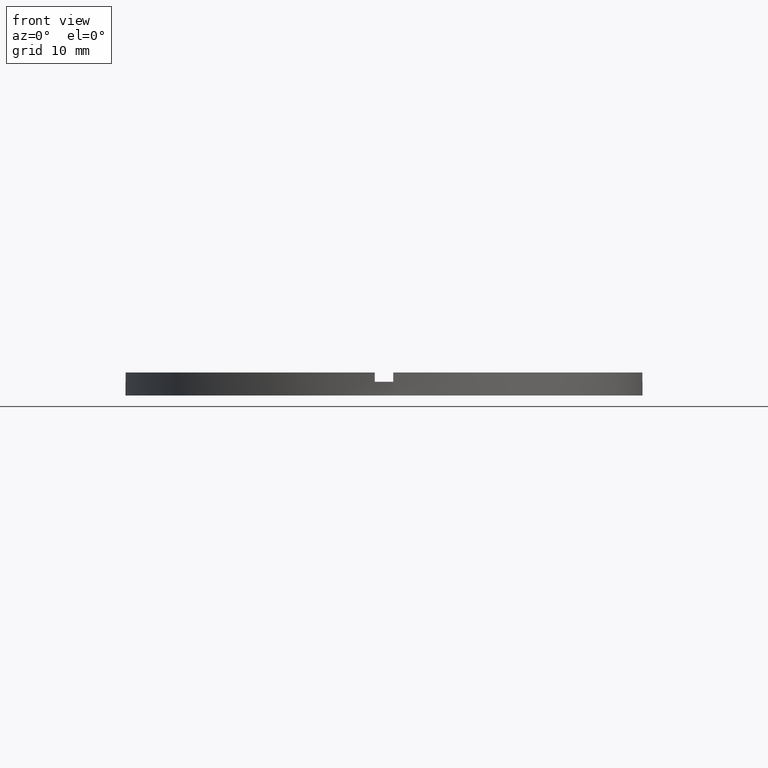
[diagram: clean part render]
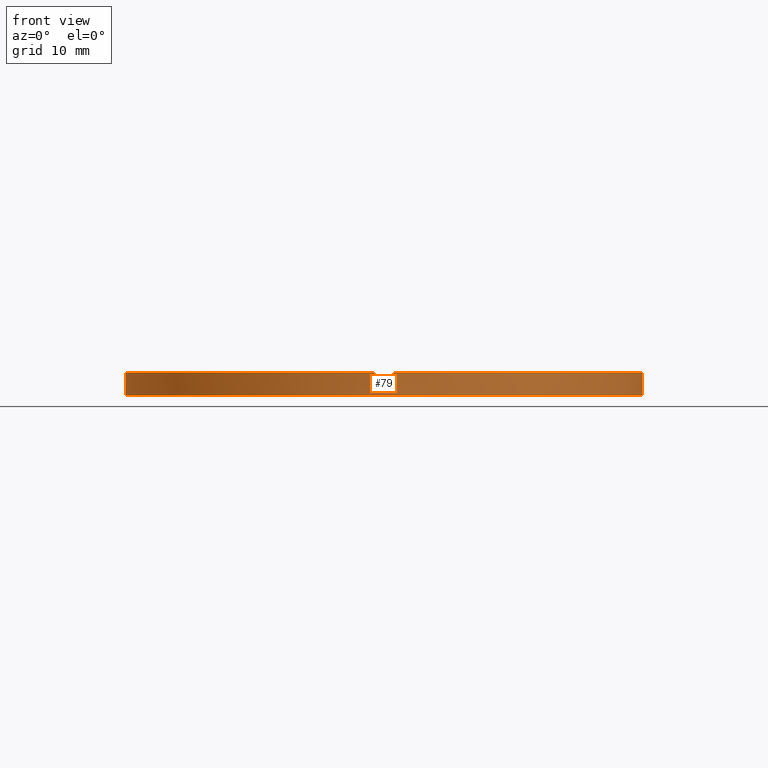
[diagram: same view with one face highlighted and labeled with its STEP entity id]
A machine part, front view. The second image highlights one B-rep face of the part: STEP entity #79.
In plain terms, the highlighted cylindrical surface (partial cylindrical patch) has radius 28 mm, axis along (-0, -0, -1).
Its self-contained STEP definition (entity closure, byte-faithful):
#4 = EDGE_CURVE ( 'NONE', #600, #767, #463, .T. ) ;
#12 = DIRECTION ( 'NONE',  ( 0.000000000000000000, 0.000000000000000000, 1.000000000000000000 ) ) ;
#16 = VERTEX_POINT ( 'NONE', #401 ) ;
#38 = CARTESIAN_POINT ( 'NONE',  ( 0.000000000000000000, 0.000000000000000000, 1.500000000000000000 ) ) ;
#44 = VECTOR ( 'NONE', #462, 1000.000000000000000 ) ;
#51 = EDGE_CURVE ( 'NONE', #258, #767, #639, .T. ) ;
#53 = VECTOR ( 'NONE', #737, 1000.000000000000000 ) ;
#66 = CIRCLE ( 'NONE', #569, 28.00000000000000000 ) ;
#70 = VERTEX_POINT ( 'NONE', #256 ) ;
#79 = ADVANCED_FACE ( 'NONE', ( #369 ), #372, .T. ) ;
#86 = VERTEX_POINT ( 'NONE', #221 ) ;
#94 = CARTESIAN_POINT ( 'NONE',  ( -27.98213715926644340, -1.000000000000026867, 2.500000000000000000 ) ) ;
#107 = CARTESIAN_POINT ( 'NONE',  ( 0.000000000000000000, 0.000000000000000000, 0.000000000000000000 ) ) ;
#131 = LINE ( 'NONE', #425, #359 ) ;
#137 = CARTESIAN_POINT ( 'NONE',  ( 28.00000000000000000, 3.429011037612589276E-15, 2.500000000000000000 ) ) ;
#144 = CARTESIAN_POINT ( 'NONE',  ( -28.00000000000000000, 0.000000000000000000, 1.500000000000000000 ) ) ;
#151 = CARTESIAN_POINT ( 'NONE',  ( 0.000000000000000000, 0.000000000000000000, 2.500000000000000000 ) ) ;
#159 = CARTESIAN_POINT ( 'NONE',  ( 0.000000000000000000, 0.000000000000000000, 1.500000000000000000 ) ) ;
#169 = DIRECTION ( 'NONE',  ( -0.000000000000000000, 0.000000000000000000, 1.000000000000000000 ) ) ;
#171 = EDGE_CURVE ( 'NONE', #258, #86, #374, .T. ) ;
#198 = DIRECTION ( 'NONE',  ( 1.000000000000000000, 0.000000000000000000, 0.000000000000000000 ) ) ;
#203 = DIRECTION ( 'NONE',  ( 1.000000000000000000, 0.000000000000000000, 0.000000000000000000 ) ) ;
#206 = EDGE_CURVE ( 'NONE', #236, #543, #131, .T. ) ;
#208 = CARTESIAN_POINT ( 'NONE',  ( 0.000000000000000000, 0.000000000000000000, 2.500000000000000000 ) ) ;
#216 = DIRECTION ( 'NONE',  ( 0.000000000000000000, 0.000000000000000000, 1.000000000000000000 ) ) ;
#221 = CARTESIAN_POINT ( 'NONE',  ( 0.9999999999998402389, -27.98213715926645051, 1.500000000000000000 ) ) ;
#229 = CARTESIAN_POINT ( 'NONE',  ( 0.000000000000000000, 0.000000000000000000, 2.500000000000000000 ) ) ;
#234 = AXIS2_PLACEMENT_3D ( 'NONE', #151, #299, #679 ) ;
#236 = VERTEX_POINT ( 'NONE', #144 ) ;
#245 = ORIENTED_EDGE ( 'NONE', *, *, #592, .F. ) ;
#256 = CARTESIAN_POINT ( 'NONE',  ( -27.98213715926644340, -1.000000000000026867, 2.500000000000000000 ) ) ;
#257 = CARTESIAN_POINT ( 'NONE',  ( 0.9999999999998402389, -27.98213715926645051, 2.500000000000000000 ) ) ;
#258 = VERTEX_POINT ( 'NONE', #483 ) ;
#263 = ORIENTED_EDGE ( 'NONE', *, *, #419, .F. ) ;
#272 = ORIENTED_EDGE ( 'NONE', *, *, #206, .T. ) ;
#284 = DIRECTION ( 'NONE',  ( 1.000000000000000000, 0.000000000000000000, 0.000000000000000000 ) ) ;
#286 = CARTESIAN_POINT ( 'NONE',  ( 0.000000000000000000, 0.000000000000000000, 1.500000000000000000 ) ) ;
#293 = AXIS2_PLACEMENT_3D ( 'NONE', #107, #661, #438 ) ;
#298 = CARTESIAN_POINT ( 'NONE',  ( 27.98213715926643985, -1.000000000000156986, 2.500000000000000000 ) ) ;
#299 = DIRECTION ( 'NONE',  ( -0.000000000000000000, -0.000000000000000000, -1.000000000000000000 ) ) ;
#302 = CIRCLE ( 'NONE', #293, 28.00000000000000000 ) ;
#308 = LINE ( 'NONE', #137, #44 ) ;
#317 = CIRCLE ( 'NONE', #714, 28.00000000000000000 ) ;
#327 = EDGE_CURVE ( 'NONE', #600, #478, #448, .T. ) ;
#328 = CARTESIAN_POINT ( 'NONE',  ( 27.98213715926643985, -1.000000000000156986, 2.500000000000000000 ) ) ;
#330 = DIRECTION ( 'NONE',  ( 0.000000000000000000, 0.000000000000000000, 1.000000000000000000 ) ) ;
#332 = VERTEX_POINT ( 'NONE', #695 ) ;
#335 = LINE ( 'NONE', #94, #570 ) ;
#358 = VERTEX_POINT ( 'NONE', #548 ) ;
#359 = VECTOR ( 'NONE', #601, 1000.000000000000000 ) ;
#360 = DIRECTION ( 'NONE',  ( 0.000000000000000000, 0.000000000000000000, 1.000000000000000000 ) ) ;
#362 = VECTOR ( 'NONE', #716, 1000.000000000000000 ) ;
#366 = VERTEX_POINT ( 'NONE', #502 ) ;
#369 = FACE_OUTER_BOUND ( 'NONE', #618, .T. ) ;
#372 = CYLINDRICAL_SURFACE ( 'NONE', #234, 28.00000000000000000 ) ;
#374 = LINE ( 'NONE', #257, #362 ) ;
#381 = ORIENTED_EDGE ( 'NONE', *, *, #4, .T. ) ;
#394 = AXIS2_PLACEMENT_3D ( 'NONE', #208, #330, #198 ) ;
#401 = CARTESIAN_POINT ( 'NONE',  ( -1.000000000000159872, -27.98213715926643985, 2.500000000000000000 ) ) ;
#419 = EDGE_CURVE ( 'NONE', #332, #86, #317, .T. ) ;
#420 = EDGE_CURVE ( 'NONE', #236, #366, #66, .T. ) ;
#421 = CARTESIAN_POINT ( 'NONE',  ( 27.98213715926643985, -1.000000000000156986, 1.500000000000000000 ) ) ;
#425 = CARTESIAN_POINT ( 'NONE',  ( -28.00000000000000000, 0.000000000000000000, 2.500000000000000000 ) ) ;
#431 = AXIS2_PLACEMENT_3D ( 'NONE', #229, #360, #701 ) ;
#438 = DIRECTION ( 'NONE',  ( 1.000000000000000000, 0.000000000000000000, 0.000000000000000000 ) ) ;
#448 = CIRCLE ( 'NONE', #771, 28.00000000000000000 ) ;
#460 = ORIENTED_EDGE ( 'NONE', *, *, #420, .F. ) ;
#462 = DIRECTION ( 'NONE',  ( -0.000000000000000000, -0.000000000000000000, -1.000000000000000000 ) ) ;
#463 = LINE ( 'NONE', #298, #703 ) ;
#474 = EDGE_CURVE ( 'NONE', #543, #358, #302, .T. ) ;
#478 = VERTEX_POINT ( 'NONE', #699 ) ;
#483 = CARTESIAN_POINT ( 'NONE',  ( 0.9999999999998402389, -27.98213715926645051, 2.500000000000000000 ) ) ;
#502 = CARTESIAN_POINT ( 'NONE',  ( -27.98213715926644340, -1.000000000000026867, 1.500000000000000000 ) ) ;
#525 = EDGE_CURVE ( 'NONE', #332, #16, #562, .T. ) ;
#527 = EDGE_CURVE ( 'NONE', #70, #366, #335, .T. ) ;
#533 = ORIENTED_EDGE ( 'NONE', *, *, #171, .T. ) ;
#543 = VERTEX_POINT ( 'NONE', #768 ) ;
#548 = CARTESIAN_POINT ( 'NONE',  ( 28.00000000000000000, 3.429011037612589276E-15, 0.000000000000000000 ) ) ;
#559 = DIRECTION ( 'NONE',  ( -0.000000000000000000, -0.000000000000000000, -1.000000000000000000 ) ) ;
#562 = LINE ( 'NONE', #653, #53 ) ;
#563 = CIRCLE ( 'NONE', #431, 28.00000000000000000 ) ;
#569 = AXIS2_PLACEMENT_3D ( 'NONE', #38, #216, #284 ) ;
#570 = VECTOR ( 'NONE', #559, 1000.000000000000000 ) ;
#582 = EDGE_CURVE ( 'NONE', #70, #16, #563, .T. ) ;
#592 = EDGE_CURVE ( 'NONE', #478, #358, #308, .T. ) ;
#600 = VERTEX_POINT ( 'NONE', #421 ) ;
#601 = DIRECTION ( 'NONE',  ( -0.000000000000000000, -0.000000000000000000, -1.000000000000000000 ) ) ;
#618 = EDGE_LOOP ( 'NONE', ( #245, #726, #381, #644, #533, #263, #712, #773, #764, #460, #272, #757 ) ) ;
#639 = CIRCLE ( 'NONE', #394, 28.00000000000000000 ) ;
#644 = ORIENTED_EDGE ( 'NONE', *, *, #51, .F. ) ;
#653 = CARTESIAN_POINT ( 'NONE',  ( -1.000000000000159872, -27.98213715926643985, 2.500000000000000000 ) ) ;
#661 = DIRECTION ( 'NONE',  ( 0.000000000000000000, 0.000000000000000000, 1.000000000000000000 ) ) ;
#679 = DIRECTION ( 'NONE',  ( -1.000000000000000000, 0.000000000000000000, 0.000000000000000000 ) ) ;
#695 = CARTESIAN_POINT ( 'NONE',  ( -1.000000000000159872, -27.98213715926643985, 1.500000000000000000 ) ) ;
#699 = CARTESIAN_POINT ( 'NONE',  ( 28.00000000000000000, 3.429011037612589276E-15, 1.500000000000000000 ) ) ;
#701 = DIRECTION ( 'NONE',  ( 1.000000000000000000, 0.000000000000000000, 0.000000000000000000 ) ) ;
#703 = VECTOR ( 'NONE', #780, 1000.000000000000000 ) ;
#712 = ORIENTED_EDGE ( 'NONE', *, *, #525, .T. ) ;
#714 = AXIS2_PLACEMENT_3D ( 'NONE', #159, #169, #203 ) ;
#716 = DIRECTION ( 'NONE',  ( -0.000000000000000000, -0.000000000000000000, -1.000000000000000000 ) ) ;
#726 = ORIENTED_EDGE ( 'NONE', *, *, #327, .F. ) ;
#737 = DIRECTION ( 'NONE',  ( 0.000000000000000000, 0.000000000000000000, 1.000000000000000000 ) ) ;
#757 = ORIENTED_EDGE ( 'NONE', *, *, #474, .T. ) ;
#760 = DIRECTION ( 'NONE',  ( 1.000000000000000000, 0.000000000000000000, 0.000000000000000000 ) ) ;
#764 = ORIENTED_EDGE ( 'NONE', *, *, #527, .T. ) ;
#767 = VERTEX_POINT ( 'NONE', #328 ) ;
#768 = CARTESIAN_POINT ( 'NONE',  ( -28.00000000000000000, 0.000000000000000000, 0.000000000000000000 ) ) ;
#771 = AXIS2_PLACEMENT_3D ( 'NONE', #286, #12, #760 ) ;
#773 = ORIENTED_EDGE ( 'NONE', *, *, #582, .F. ) ;
#780 = DIRECTION ( 'NONE',  ( 0.000000000000000000, 0.000000000000000000, 1.000000000000000000 ) ) ;